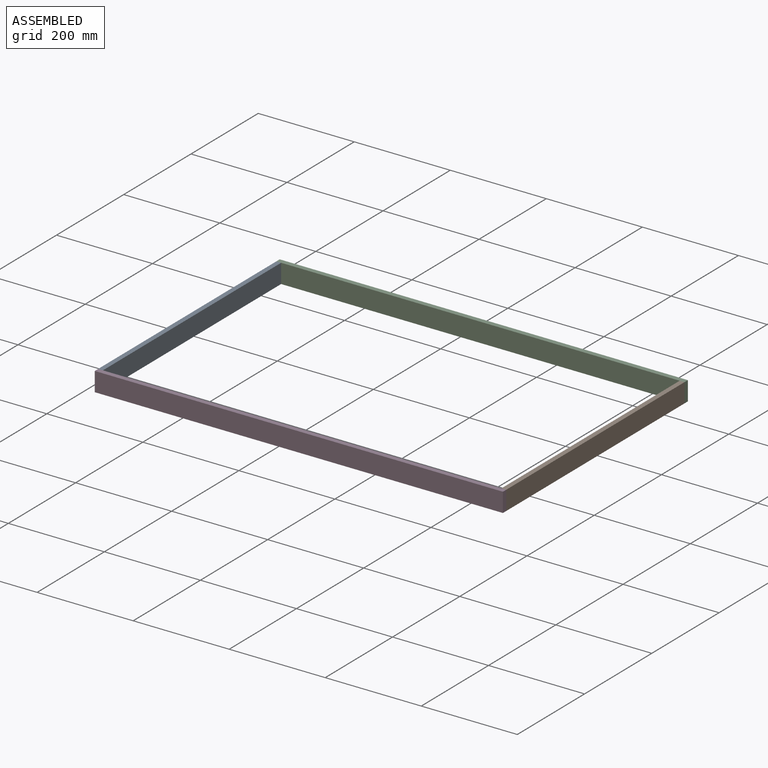
[diagram: assembled view]
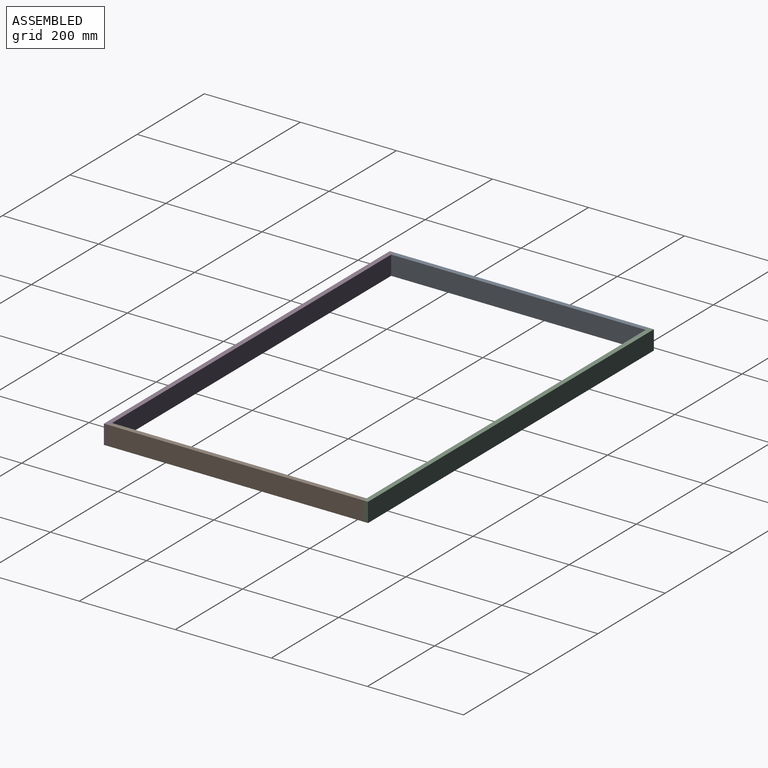
[diagram: assembled view, second angle]
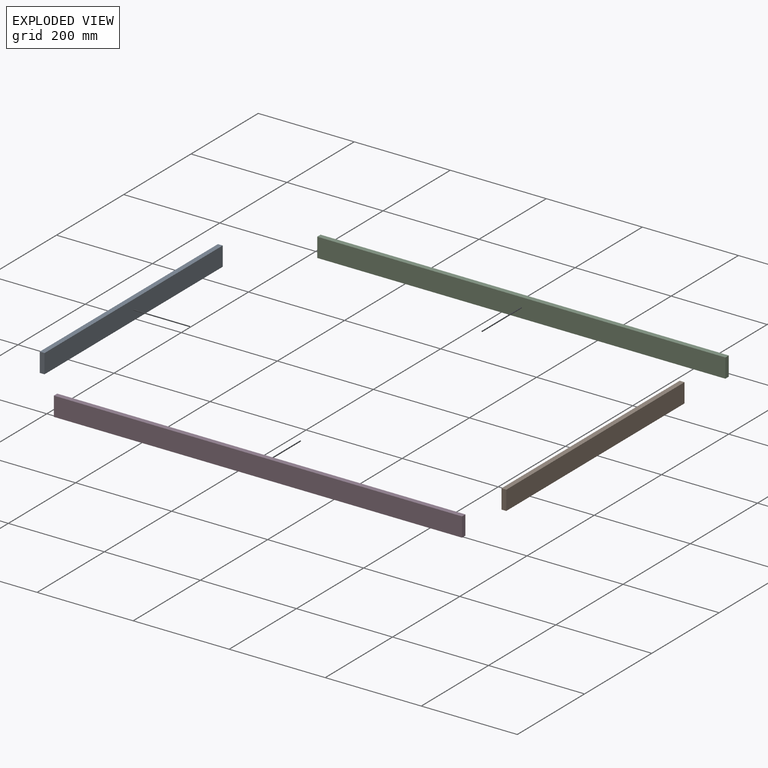
[diagram: exploded view]
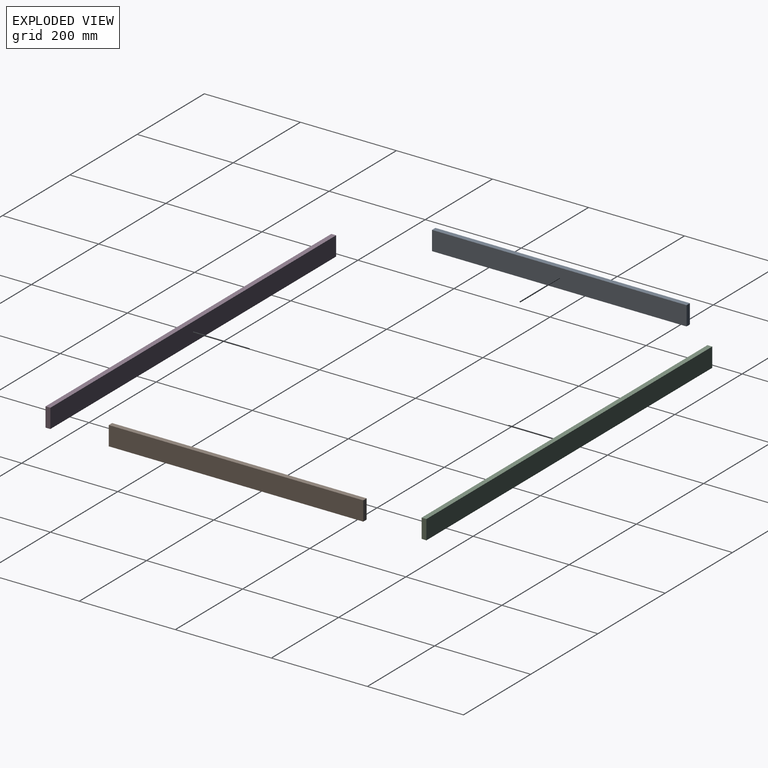
[diagram: exploded view, second angle]
ASSEMBLY  parts=4 mates=3
PART A: 6 faces, bbox 530x10x40 mm
  f0: plane 40x10mm, normal (-1,0,0), area 400mm2, adj f1,f3,f4,f5
  f1: plane 530x10mm, normal (0,0,-1), area 5300mm2, adj f0,f2,f4,f5
  f2: plane 40x10mm, normal (1,0,0), area 400mm2, adj f1,f3,f4,f5
  f3: plane 530x10mm, normal (0,0,1), area 5300mm2, adj f0,f2,f4,f5
  f4: plane 530x40mm, normal (0,-1,0), area 21200mm2, adj f0,f1,f2,f3
  f5: plane 530x40mm, normal (0,1,0), area 21200mm2, adj f0,f1,f2,f3
PART B: same geometry as A
PART C: 6 faces, bbox 850x10x40 mm
  f0: plane 40x10mm, normal (-1,0,0), area 400mm2, adj f1,f3,f4,f5
  f1: plane 850x10mm, normal (0,0,-1), area 8500mm2, adj f0,f2,f4,f5
  f2: plane 40x10mm, normal (1,0,0), area 400mm2, adj f1,f3,f4,f5
  f3: plane 850x10mm, normal (0,0,1), area 8500mm2, adj f0,f2,f4,f5
  f4: plane 850x40mm, normal (0,-1,0), area 34000mm2, adj f0,f1,f2,f3
  f5: plane 850x40mm, normal (0,1,0), area 34000mm2, adj f0,f1,f2,f3
PART D: same geometry as C
PLACE A rot(axis=(0,0,-1),90deg) t=(45.92,231.42,-64.54)mm
PLACE B rot(axis=(0,0,1),90deg) t=(875.92,-298.58,-64.54)mm
PLACE C t=(35.92,241.42,-64.54)mm
PLACE D t=(35.92,-298.58,-64.54)mm
MATE fastened D.f5 <-> A.f2  axis (0,1,0) through (35.92,-298.58,-24.54)mm
MATE fastened A.f4 <-> C.f0  axis (-1,0,0) through (35.92,231.42,-24.54)mm
MATE fastened B.f4 <-> C.f2  axis (1,0,0) through (885.92,231.42,-24.54)mm
